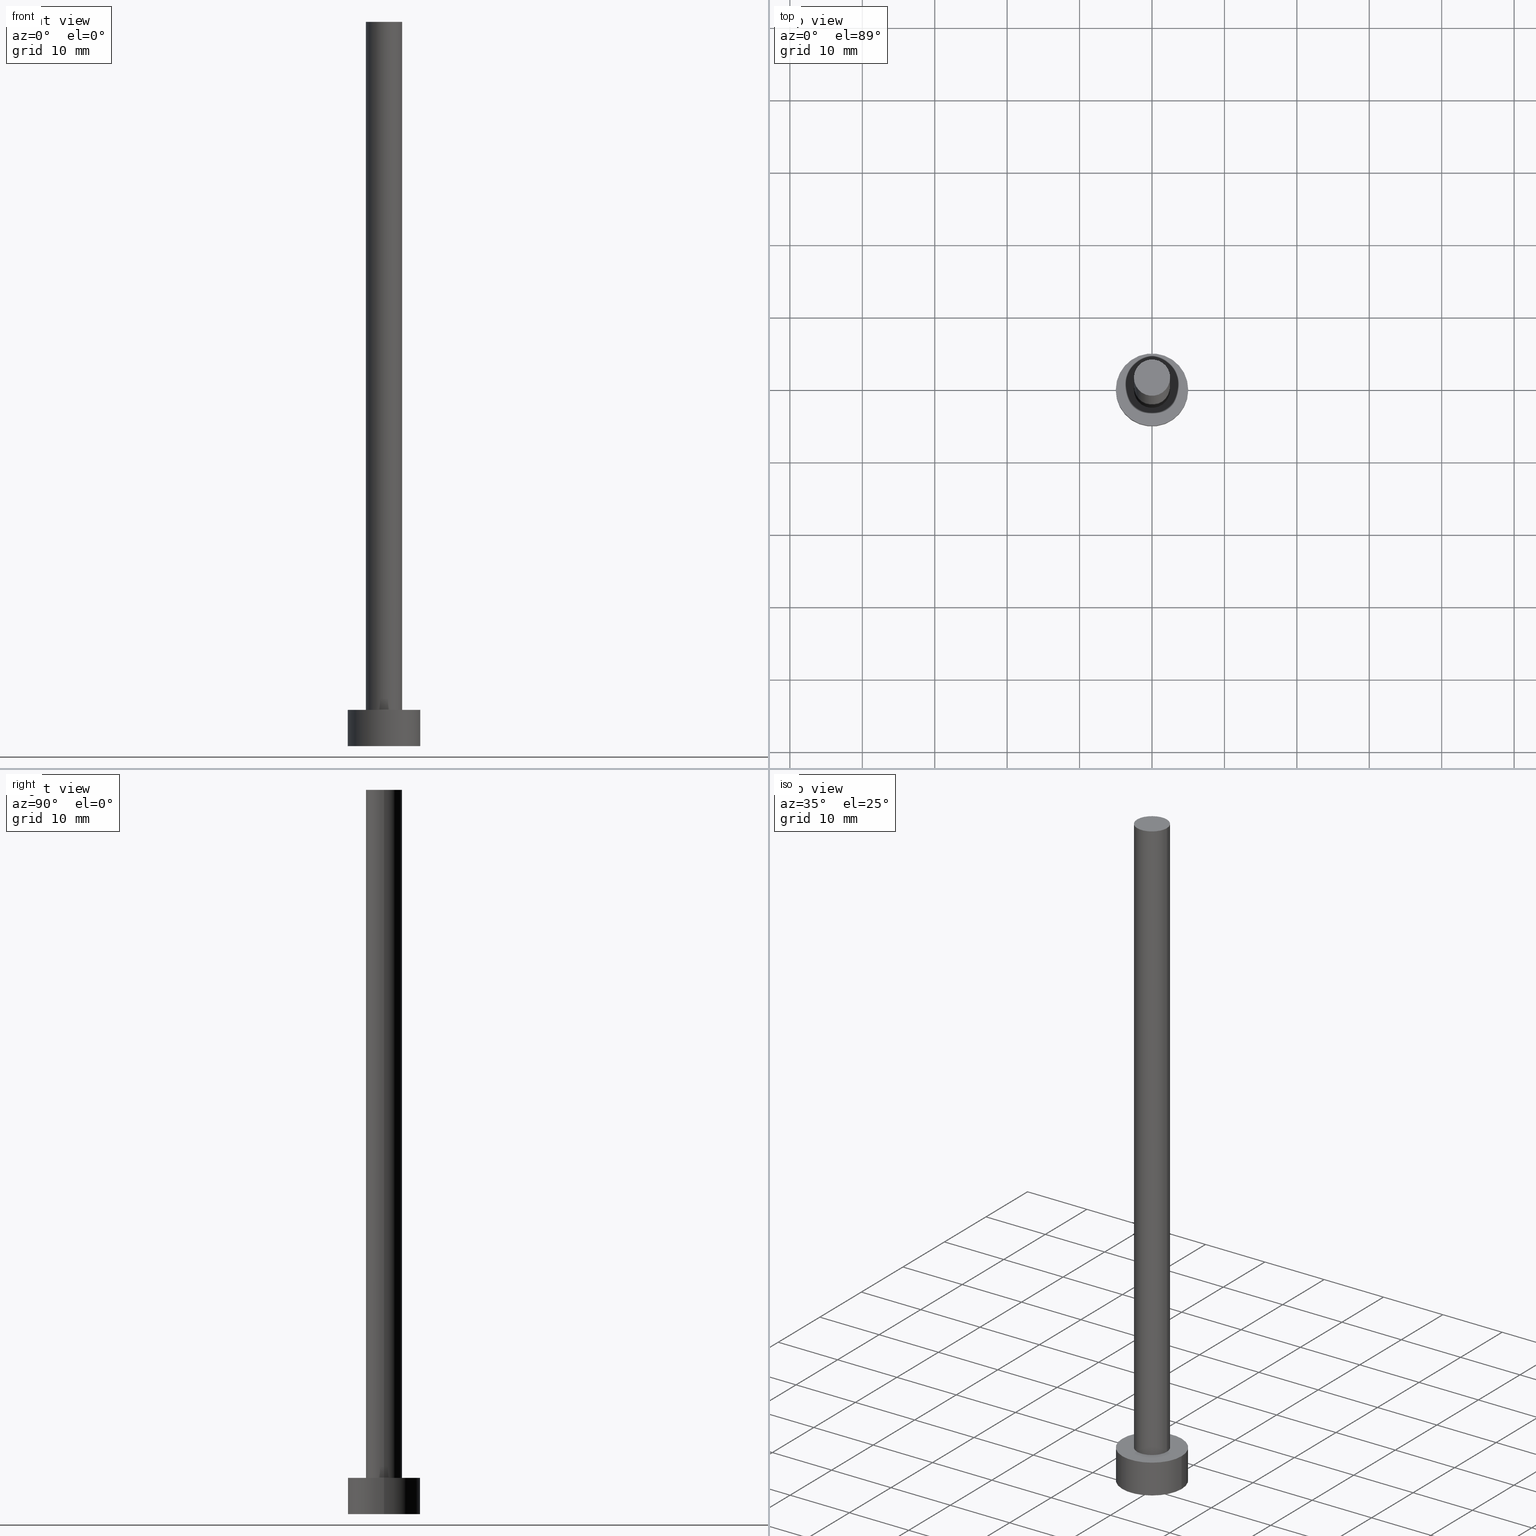
[diagram: canonical four-view strip — front | top / right | iso, engineering-drawing reading convention]
A machine part, canonical four-view strip (front | top / right | iso — engineering-drawing reading convention). The complete STEP part file that produces these views, byte-faithful:
ISO-10303-21;
HEADER;
FILE_DESCRIPTION (( 'STEP AP203' ),
    '1' );
FILE_NAME ('4335.STEP',
    '2023-02-13T16:18:46',
    ( '' ),
    ( '' ),
    'SwSTEP 2.0',
    'SolidWorks 2019',
    '' );
FILE_SCHEMA (( 'CONFIG_CONTROL_DESIGN' ));
ENDSEC;

DATA;
#1 = CC_DESIGN_PERSON_AND_ORGANIZATION_ASSIGNMENT ( #10, #126, ( #50 ) ) ;
#2 = CIRCLE ( 'NONE', #215, 5.000000000000000000 ) ;
#3 = APPROVAL_STATUS ( 'not_yet_approved' ) ;
#4 = CYLINDRICAL_SURFACE ( 'NONE', #29, 2.500000000000000000 ) ;
#5 = CYLINDRICAL_SURFACE ( 'NONE', #85, 5.000000000000000000 ) ;
#6 = CARTESIAN_POINT ( 'NONE',  ( 2.500000000000000000, 3.061616997868383141E-16, 100.0000000000000000 ) ) ;
#7 = AXIS2_PLACEMENT_3D ( 'NONE', #154, #175, #168 ) ;
#8 = APPROVAL_ROLE ( '' ) ;
#9 = SHAPE_DEFINITION_REPRESENTATION ( #149, #209 ) ;
#10 = PERSON_AND_ORGANIZATION ( #157, #158 ) ;
#11 = DIRECTION ( 'NONE',  ( 1.000000000000000000, 0.000000000000000000, 0.000000000000000000 ) ) ;
#12 = CARTESIAN_POINT ( 'NONE',  ( 0.000000000000000000, 0.000000000000000000, 0.000000000000000000 ) ) ;
#13 = CARTESIAN_POINT ( 'NONE',  ( 0.000000000000000000, 0.000000000000000000, 5.000000000000000000 ) ) ;
#14 = FACE_OUTER_BOUND ( 'NONE', #243, .T. ) ;
#15 = CIRCLE ( 'NONE', #182, 5.000000000000000000 ) ;
#16 = ORIENTED_EDGE ( 'NONE', *, *, #114, .F. ) ;
#17 = DIRECTION ( 'NONE',  ( 0.000000000000000000, 0.000000000000000000, 1.000000000000000000 ) ) ;
#18 = EDGE_CURVE ( 'NONE', #60, #133, #222, .T. ) ;
#19 = DIRECTION ( 'NONE',  ( 1.000000000000000000, 0.000000000000000000, 0.000000000000000000 ) ) ;
#20 = ORIENTED_EDGE ( 'NONE', *, *, #224, .T. ) ;
#21 = CARTESIAN_POINT ( 'NONE',  ( 0.000000000000000000, 0.000000000000000000, 0.000000000000000000 ) ) ;
#22 = EDGE_CURVE ( 'NONE', #133, #212, #195, .T. ) ;
#23 = MECHANICAL_CONTEXT ( 'NONE', #136, 'mechanical' ) ;
#24 = DATE_AND_TIME ( #204, #135 ) ;
#25 = PRODUCT_RELATED_PRODUCT_CATEGORY ( 'detail', '', ( #185 ) ) ;
#26 = CARTESIAN_POINT ( 'NONE',  ( 0.000000000000000000, 0.000000000000000000, 100.0000000000000000 ) ) ;
#27 = DIRECTION ( 'NONE',  ( 0.000000000000000000, 0.000000000000000000, 1.000000000000000000 ) ) ;
#28 = DESIGN_CONTEXT ( 'detailed design', #174, 'design' ) ;
#29 = AXIS2_PLACEMENT_3D ( 'NONE', #61, #36, #140 ) ;
#30 = DIRECTION ( 'NONE',  ( 0.000000000000000000, 0.000000000000000000, 1.000000000000000000 ) ) ;
#31 = CARTESIAN_POINT ( 'NONE',  ( 0.000000000000000000, 0.000000000000000000, 100.0000000000000000 ) ) ;
#32 = CYLINDRICAL_SURFACE ( 'NONE', #128, 2.500000000000000000 ) ;
#33 = CIRCLE ( 'NONE', #147, 2.500000000000000000 ) ;
#34 = CC_DESIGN_DATE_AND_TIME_ASSIGNMENT ( #42, #202, ( #207 ) ) ;
#35 = ORIENTED_EDGE ( 'NONE', *, *, #18, .F. ) ;
#36 = DIRECTION ( 'NONE',  ( -0.000000000000000000, -0.000000000000000000, -1.000000000000000000 ) ) ;
#37 = PERSON_AND_ORGANIZATION ( #157, #158 ) ;
#38 = APPROVAL_PERSON_ORGANIZATION ( #165, #101, #8 ) ;
#39 = CLOSED_SHELL ( 'NONE', ( #251, #229, #249, #167, #93, #201, #48 ) ) ;
#40 = EDGE_CURVE ( 'NONE', #59, #220, #64, .T. ) ;
#41 = ORIENTED_EDGE ( 'NONE', *, *, #176, .F. ) ;
#42 = DATE_AND_TIME ( #118, #171 ) ;
#43 = DATE_TIME_ROLE ( 'classification_date' ) ;
#44 = FACE_OUTER_BOUND ( 'NONE', #80, .T. ) ;
#45 = LOCAL_TIME ( 17, 18, 46.00000000000000000, #223 ) ;
#46 = DIRECTION ( 'NONE',  ( 1.000000000000000000, 0.000000000000000000, -0.000000000000000000 ) ) ;
#47 = CARTESIAN_POINT ( 'NONE',  ( 5.000000000000000000, 6.123233995736766282E-16, 5.000000000000000000 ) ) ;
#48 = ADVANCED_FACE ( 'NONE', ( #44 ), #75, .T. ) ;
#49 = APPROVAL_DATE_TIME ( #186, #101 ) ;
#50 = PRODUCT_DEFINITION_FORMATION_WITH_SPECIFIED_SOURCE ( 'LIBOVOLN�', '', #185, .NOT_KNOWN. ) ;
#51 = DIRECTION ( 'NONE',  ( 0.000000000000000000, 0.000000000000000000, 1.000000000000000000 ) ) ;
#52 = LOCAL_TIME ( 17, 18, 46.00000000000000000, #205 ) ;
#53 = CARTESIAN_POINT ( 'NONE',  ( -5.000000000000000000, 0.000000000000000000, 0.000000000000000000 ) ) ;
#54 = EDGE_LOOP ( 'NONE', ( #170, #96 ) ) ;
#55 = DIRECTION ( 'NONE',  ( 1.000000000000000000, 0.000000000000000000, 0.000000000000000000 ) ) ;
#56 = ORIENTED_EDGE ( 'NONE', *, *, #40, .F. ) ;
#57 = ORIENTED_EDGE ( 'NONE', *, *, #120, .F. ) ;
#58 =( NAMED_UNIT ( * ) PLANE_ANGLE_UNIT ( ) SI_UNIT ( $, .RADIAN. ) );
#59 = VERTEX_POINT ( 'NONE', #191 ) ;
#60 = VERTEX_POINT ( 'NONE', #252 ) ;
#61 = CARTESIAN_POINT ( 'NONE',  ( 0.000000000000000000, 0.000000000000000000, 100.0000000000000000 ) ) ;
#62 = ORIENTED_EDGE ( 'NONE', *, *, #22, .T. ) ;
#63 = PERSON_AND_ORGANIZATION ( #157, #158 ) ;
#64 = LINE ( 'NONE', #66, #83 ) ;
#65 = SECURITY_CLASSIFICATION_LEVEL ( 'unclassified' ) ;
#66 = CARTESIAN_POINT ( 'NONE',  ( -5.000000000000000000, 0.000000000000000000, 5.000000000000000000 ) ) ;
#67 = CARTESIAN_POINT ( 'NONE',  ( 0.000000000000000000, 0.000000000000000000, 100.0000000000000000 ) ) ;
#68 = CIRCLE ( 'NONE', #226, 5.000000000000000000 ) ;
#69 =( GEOMETRIC_REPRESENTATION_CONTEXT ( 3 ) GLOBAL_UNCERTAINTY_ASSIGNED_CONTEXT ( ( #233 ) ) GLOBAL_UNIT_ASSIGNED_CONTEXT ( ( #156, #58, #239 ) ) REPRESENTATION_CONTEXT ( 'NONE', 'WORKASPACE' ) );
#70 = EDGE_CURVE ( 'NONE', #220, #159, #184, .T. ) ;
#71 = CARTESIAN_POINT ( 'NONE',  ( -2.500000000000000000, 0.000000000000000000, 100.0000000000000000 ) ) ;
#72 = CARTESIAN_POINT ( 'NONE',  ( 0.000000000000000000, 0.000000000000000000, 5.000000000000000000 ) ) ;
#73 = VECTOR ( 'NONE', #211, 1000.000000000000000 ) ;
#74 = ORIENTED_EDGE ( 'NONE', *, *, #187, .F. ) ;
#75 = PLANE ( 'NONE',  #142 ) ;
#76 = ORIENTED_EDGE ( 'NONE', *, *, #153, .T. ) ;
#77 = DIRECTION ( 'NONE',  ( -1.000000000000000000, 0.000000000000000000, 0.000000000000000000 ) ) ;
#78 = CC_DESIGN_SECURITY_CLASSIFICATION ( #232, ( #50 ) ) ;
#79 = ORIENTED_EDGE ( 'NONE', *, *, #18, .T. ) ;
#80 = EDGE_LOOP ( 'NONE', ( #200, #216 ) ) ;
#81 = APPROVAL_STATUS ( 'not_yet_approved' ) ;
#82 = COORDINATED_UNIVERSAL_TIME_OFFSET ( 1, 0, .AHEAD. ) ;
#83 = VECTOR ( 'NONE', #146, 1000.000000000000000 ) ;
#84 = DIRECTION ( 'NONE',  ( -0.000000000000000000, -0.000000000000000000, -1.000000000000000000 ) ) ;
#85 = AXIS2_PLACEMENT_3D ( 'NONE', #162, #121, #77 ) ;
#86 = PERSON_AND_ORGANIZATION_ROLE ( 'classification_officer' ) ;
#87 = DIRECTION ( 'NONE',  ( 1.000000000000000000, 0.000000000000000000, 0.000000000000000000 ) ) ;
#88 = CC_DESIGN_PERSON_AND_ORGANIZATION_ASSIGNMENT ( #109, #104, ( #50 ) ) ;
#89 = AXIS2_PLACEMENT_3D ( 'NONE', #67, #30, #11 ) ;
#90 = DIRECTION ( 'NONE',  ( -1.000000000000000000, 0.000000000000000000, 0.000000000000000000 ) ) ;
#91 = ORIENTED_EDGE ( 'NONE', *, *, #224, .F. ) ;
#92 = CARTESIAN_POINT ( 'NONE',  ( -2.500000000000000000, 0.000000000000000000, 100.0000000000000000 ) ) ;
#93 = ADVANCED_FACE ( 'NONE', ( #108 ), #125, .F. ) ;
#94 = ORIENTED_EDGE ( 'NONE', *, *, #40, .T. ) ;
#95 = CALENDAR_DATE ( 2023, 13, 2 ) ;
#96 = ORIENTED_EDGE ( 'NONE', *, *, #236, .F. ) ;
#97 = APPLICATION_PROTOCOL_DEFINITION ( 'international standard', 'config_control_design', 1994, #174 ) ;
#98 = COORDINATED_UNIVERSAL_TIME_OFFSET ( 1, 0, .AHEAD. ) ;
#99 = CC_DESIGN_PERSON_AND_ORGANIZATION_ASSIGNMENT ( #37, #203, ( #207 ) ) ;
#100 = CIRCLE ( 'NONE', #189, 2.500000000000000000 ) ;
#101 = APPROVAL ( #208, 'NEUR�EN�' ) ;
#102 = MANIFOLD_SOLID_BREP ( 'P�idat vysunut�m3', #39 ) ;
#103 = EDGE_CURVE ( 'NONE', #194, #212, #188, .T. ) ;
#104 = PERSON_AND_ORGANIZATION_ROLE ( 'creator' ) ;
#105 = DIRECTION ( 'NONE',  ( 0.000000000000000000, 0.000000000000000000, 1.000000000000000000 ) ) ;
#106 = VECTOR ( 'NONE', #84, 1000.000000000000000 ) ;
#107 = CALENDAR_DATE ( 2023, 13, 2 ) ;
#108 = FACE_OUTER_BOUND ( 'NONE', #54, .T. ) ;
#109 = PERSON_AND_ORGANIZATION ( #157, #158 ) ;
#110 = LINE ( 'NONE', #111, #245 ) ;
#111 = CARTESIAN_POINT ( 'NONE',  ( 5.000000000000000000, 6.123233995736766282E-16, 5.000000000000000000 ) ) ;
#112 = CC_DESIGN_PERSON_AND_ORGANIZATION_ASSIGNMENT ( #122, #86, ( #232 ) ) ;
#113 = DIRECTION ( 'NONE',  ( -0.000000000000000000, -0.000000000000000000, -1.000000000000000000 ) ) ;
#114 = EDGE_CURVE ( 'NONE', #60, #194, #33, .T. ) ;
#115 = EDGE_LOOP ( 'NONE', ( #137, #20, #218, #56 ) ) ;
#116 = APPROVAL_ROLE ( '' ) ;
#117 = EDGE_LOOP ( 'NONE', ( #41, #237 ) ) ;
#118 = CALENDAR_DATE ( 2023, 13, 2 ) ;
#119 = CC_DESIGN_APPROVAL ( #248, ( #207 ) ) ;
#120 = EDGE_CURVE ( 'NONE', #194, #60, #181, .T. ) ;
#121 = DIRECTION ( 'NONE',  ( -0.000000000000000000, -0.000000000000000000, -1.000000000000000000 ) ) ;
#122 = PERSON_AND_ORGANIZATION ( #157, #158 ) ;
#123 = LOCAL_TIME ( 17, 18, 46.00000000000000000, #124 ) ;
#124 = COORDINATED_UNIVERSAL_TIME_OFFSET ( 1, 0, .AHEAD. ) ;
#125 = PLANE ( 'NONE',  #151 ) ;
#126 = PERSON_AND_ORGANIZATION_ROLE ( 'design_supplier' ) ;
#127 = CARTESIAN_POINT ( 'NONE',  ( 2.500000000000000000, 3.061616997868383141E-16, 5.000000000000000000 ) ) ;
#128 = AXIS2_PLACEMENT_3D ( 'NONE', #238, #152, #90 ) ;
#129 = PLANE ( 'NONE',  #214 ) ;
#130 = FACE_OUTER_BOUND ( 'NONE', #115, .T. ) ;
#131 = ORIENTED_EDGE ( 'NONE', *, *, #103, .F. ) ;
#132 = DIRECTION ( 'NONE',  ( 1.000000000000000000, 0.000000000000000000, -0.000000000000000000 ) ) ;
#133 = VERTEX_POINT ( 'NONE', #127 ) ;
#134 = APPROVAL ( #3, 'NEUR�EN�' ) ;
#135 = LOCAL_TIME ( 17, 18, 46.00000000000000000, #82 ) ;
#136 = APPLICATION_CONTEXT ( 'configuration controlled 3d designs of mechanical parts and assemblies' ) ;
#137 = ORIENTED_EDGE ( 'NONE', *, *, #153, .F. ) ;
#138 = EDGE_LOOP ( 'NONE', ( #16, #79, #62, #131 ) ) ;
#139 = DATE_AND_TIME ( #95, #45 ) ;
#140 = DIRECTION ( 'NONE',  ( -1.000000000000000000, 0.000000000000000000, 0.000000000000000000 ) ) ;
#141 = AXIS2_PLACEMENT_3D ( 'NONE', #213, #113, #230 ) ;
#142 = AXIS2_PLACEMENT_3D ( 'NONE', #31, #51, #46 ) ;
#143 = ORIENTED_EDGE ( 'NONE', *, *, #176, .T. ) ;
#144 = ORIENTED_EDGE ( 'NONE', *, *, #70, .T. ) ;
#145 = DATE_AND_TIME ( #225, #123 ) ;
#146 = DIRECTION ( 'NONE',  ( -0.000000000000000000, -0.000000000000000000, -1.000000000000000000 ) ) ;
#147 = AXIS2_PLACEMENT_3D ( 'NONE', #26, #231, #172 ) ;
#148 = FACE_OUTER_BOUND ( 'NONE', #173, .T. ) ;
#149 = PRODUCT_DEFINITION_SHAPE ( 'NONE', 'NONE',  #207 ) ;
#150 = DIRECTION ( 'NONE',  ( 1.000000000000000000, 0.000000000000000000, 0.000000000000000000 ) ) ;
#151 = AXIS2_PLACEMENT_3D ( 'NONE', #12, #253, #132 ) ;
#152 = DIRECTION ( 'NONE',  ( -0.000000000000000000, -0.000000000000000000, -1.000000000000000000 ) ) ;
#153 = EDGE_CURVE ( 'NONE', #164, #59, #68, .T. ) ;
#154 = CARTESIAN_POINT ( 'NONE',  ( 0.000000000000000000, 0.000000000000000000, 0.000000000000000000 ) ) ;
#155 = CARTESIAN_POINT ( 'NONE',  ( 0.000000000000000000, 0.000000000000000000, 5.000000000000000000 ) ) ;
#156 =( LENGTH_UNIT ( ) NAMED_UNIT ( * ) SI_UNIT ( .MILLI., .METRE. ) );
#157 = PERSON ( 'NEUR�EN�', 'NEUR�EN�', 'NEUR�EN�', ('NEUR�EN�'), ('NEUR�EN�'), ('NEUR�EN�') ) ;
#158 = ORGANIZATION ( 'NEUR�EN�', 'NEUR�EN�', '' ) ;
#159 = VERTEX_POINT ( 'NONE', #166 ) ;
#160 = APPROVAL_ROLE ( '' ) ;
#161 = FACE_OUTER_BOUND ( 'NONE', #199, .T. ) ;
#162 = CARTESIAN_POINT ( 'NONE',  ( 0.000000000000000000, 0.000000000000000000, 5.000000000000000000 ) ) ;
#163 = DIRECTION ( 'NONE',  ( 0.000000000000000000, 0.000000000000000000, 1.000000000000000000 ) ) ;
#164 = VERTEX_POINT ( 'NONE', #47 ) ;
#165 = PERSON_AND_ORGANIZATION ( #157, #158 ) ;
#166 = CARTESIAN_POINT ( 'NONE',  ( 5.000000000000000000, 6.123233995736766282E-16, 0.000000000000000000 ) ) ;
#167 = ADVANCED_FACE ( 'NONE', ( #254, #14 ), #129, .T. ) ;
#168 = DIRECTION ( 'NONE',  ( 1.000000000000000000, 0.000000000000000000, 0.000000000000000000 ) ) ;
#169 = DIRECTION ( 'NONE',  ( -0.000000000000000000, -0.000000000000000000, -1.000000000000000000 ) ) ;
#170 = ORIENTED_EDGE ( 'NONE', *, *, #70, .F. ) ;
#171 = LOCAL_TIME ( 17, 18, 46.00000000000000000, #98 ) ;
#172 = DIRECTION ( 'NONE',  ( 1.000000000000000000, 0.000000000000000000, 0.000000000000000000 ) ) ;
#173 = EDGE_LOOP ( 'NONE', ( #35, #57, #240, #143 ) ) ;
#174 = APPLICATION_CONTEXT ( 'configuration controlled 3d designs of mechanical parts and assemblies' ) ;
#175 = DIRECTION ( 'NONE',  ( 0.000000000000000000, 0.000000000000000000, 1.000000000000000000 ) ) ;
#176 = EDGE_CURVE ( 'NONE', #212, #133, #100, .T. ) ;
#177 = APPROVAL_DATE_TIME ( #139, #248 ) ;
#178 = APPROVAL_PERSON_ORGANIZATION ( #217, #248, #116 ) ;
#179 = CC_DESIGN_PERSON_AND_ORGANIZATION_ASSIGNMENT ( #63, #242, ( #185 ) ) ;
#180 = PERSON_AND_ORGANIZATION ( #157, #158 ) ;
#181 = CIRCLE ( 'NONE', #89, 2.500000000000000000 ) ;
#182 = AXIS2_PLACEMENT_3D ( 'NONE', #197, #17, #219 ) ;
#183 = CARTESIAN_POINT ( 'NONE',  ( 0.000000000000000000, 0.000000000000000000, 5.000000000000000000 ) ) ;
#184 = CIRCLE ( 'NONE', #7, 5.000000000000000000 ) ;
#185 = PRODUCT ( '4335', '4335', '', ( #23 ) ) ;
#186 = DATE_AND_TIME ( #107, #52 ) ;
#187 = EDGE_CURVE ( 'NONE', #59, #164, #2, .T. ) ;
#188 = LINE ( 'NONE', #92, #73 ) ;
#189 = AXIS2_PLACEMENT_3D ( 'NONE', #255, #235, #150 ) ;
#190 = APPROVAL_PERSON_ORGANIZATION ( #180, #134, #160 ) ;
#191 = CARTESIAN_POINT ( 'NONE',  ( -5.000000000000000000, 0.000000000000000000, 5.000000000000000000 ) ) ;
#192 = ORIENTED_EDGE ( 'NONE', *, *, #187, .T. ) ;
#193 = CYLINDRICAL_SURFACE ( 'NONE', #141, 5.000000000000000000 ) ;
#194 = VERTEX_POINT ( 'NONE', #71 ) ;
#195 = CIRCLE ( 'NONE', #206, 2.500000000000000000 ) ;
#196 = CC_DESIGN_APPROVAL ( #101, ( #232 ) ) ;
#197 = CARTESIAN_POINT ( 'NONE',  ( 0.000000000000000000, 0.000000000000000000, 0.000000000000000000 ) ) ;
#198 = DIRECTION ( 'NONE',  ( 0.000000000000000000, 0.000000000000000000, 1.000000000000000000 ) ) ;
#199 = EDGE_LOOP ( 'NONE', ( #91, #74, #94, #144 ) ) ;
#200 = ORIENTED_EDGE ( 'NONE', *, *, #120, .T. ) ;
#201 = ADVANCED_FACE ( 'NONE', ( #148 ), #32, .T. ) ;
#202 = DATE_TIME_ROLE ( 'creation_date' ) ;
#203 = PERSON_AND_ORGANIZATION_ROLE ( 'creator' ) ;
#204 = CALENDAR_DATE ( 2023, 13, 2 ) ;
#205 = COORDINATED_UNIVERSAL_TIME_OFFSET ( 1, 0, .AHEAD. ) ;
#206 = AXIS2_PLACEMENT_3D ( 'NONE', #183, #163, #247 ) ;
#207 = PRODUCT_DEFINITION ( 'NEZN�M�', '', #50, #28 ) ;
#208 = APPROVAL_STATUS ( 'not_yet_approved' ) ;
#209 = ADVANCED_BREP_SHAPE_REPRESENTATION ( '4335', ( #102, #241 ), #69 ) ;
#210 = DIRECTION ( 'NONE',  ( 0.000000000000000000, 0.000000000000000000, 1.000000000000000000 ) ) ;
#211 = DIRECTION ( 'NONE',  ( -0.000000000000000000, -0.000000000000000000, -1.000000000000000000 ) ) ;
#212 = VERTEX_POINT ( 'NONE', #234 ) ;
#213 = CARTESIAN_POINT ( 'NONE',  ( 0.000000000000000000, 0.000000000000000000, 5.000000000000000000 ) ) ;
#214 = AXIS2_PLACEMENT_3D ( 'NONE', #72, #210, #250 ) ;
#215 = AXIS2_PLACEMENT_3D ( 'NONE', #13, #27, #87 ) ;
#216 = ORIENTED_EDGE ( 'NONE', *, *, #114, .T. ) ;
#217 = PERSON_AND_ORGANIZATION ( #157, #158 ) ;
#218 = ORIENTED_EDGE ( 'NONE', *, *, #236, .T. ) ;
#219 = DIRECTION ( 'NONE',  ( 1.000000000000000000, 0.000000000000000000, 0.000000000000000000 ) ) ;
#220 = VERTEX_POINT ( 'NONE', #53 ) ;
#221 = CC_DESIGN_APPROVAL ( #134, ( #50 ) ) ;
#222 = LINE ( 'NONE', #6, #106 ) ;
#223 = COORDINATED_UNIVERSAL_TIME_OFFSET ( 1, 0, .AHEAD. ) ;
#224 = EDGE_CURVE ( 'NONE', #164, #159, #110, .T. ) ;
#225 = CALENDAR_DATE ( 2023, 13, 2 ) ;
#226 = AXIS2_PLACEMENT_3D ( 'NONE', #155, #105, #55 ) ;
#227 = CC_DESIGN_DATE_AND_TIME_ASSIGNMENT ( #145, #43, ( #232 ) ) ;
#228 = APPROVAL_DATE_TIME ( #24, #134 ) ;
#229 = ADVANCED_FACE ( 'NONE', ( #130 ), #193, .T. ) ;
#230 = DIRECTION ( 'NONE',  ( -1.000000000000000000, 0.000000000000000000, 0.000000000000000000 ) ) ;
#231 = DIRECTION ( 'NONE',  ( 0.000000000000000000, 0.000000000000000000, 1.000000000000000000 ) ) ;
#232 = SECURITY_CLASSIFICATION ( '', '', #65 ) ;
#233 = UNCERTAINTY_MEASURE_WITH_UNIT (LENGTH_MEASURE( 1.000000000000000082E-05 ), #156, 'distance_accuracy_value', 'NONE');
#234 = CARTESIAN_POINT ( 'NONE',  ( -2.500000000000000000, 0.000000000000000000, 5.000000000000000000 ) ) ;
#235 = DIRECTION ( 'NONE',  ( 0.000000000000000000, 0.000000000000000000, 1.000000000000000000 ) ) ;
#236 = EDGE_CURVE ( 'NONE', #159, #220, #15, .T. ) ;
#237 = ORIENTED_EDGE ( 'NONE', *, *, #22, .F. ) ;
#238 = CARTESIAN_POINT ( 'NONE',  ( 0.000000000000000000, 0.000000000000000000, 100.0000000000000000 ) ) ;
#239 =( NAMED_UNIT ( * ) SI_UNIT ( $, .STERADIAN. ) SOLID_ANGLE_UNIT ( ) );
#240 = ORIENTED_EDGE ( 'NONE', *, *, #103, .T. ) ;
#241 = AXIS2_PLACEMENT_3D ( 'NONE', #21, #198, #19 ) ;
#242 = PERSON_AND_ORGANIZATION_ROLE ( 'design_owner' ) ;
#243 = EDGE_LOOP ( 'NONE', ( #192, #76 ) ) ;
#244 = APPLICATION_PROTOCOL_DEFINITION ( 'international standard', 'config_control_design', 1994, #136 ) ;
#245 = VECTOR ( 'NONE', #169, 1000.000000000000000 ) ;
#246 = FACE_OUTER_BOUND ( 'NONE', #138, .T. ) ;
#247 = DIRECTION ( 'NONE',  ( 1.000000000000000000, 0.000000000000000000, 0.000000000000000000 ) ) ;
#248 = APPROVAL ( #81, 'NEUR�EN�' ) ;
#249 = ADVANCED_FACE ( 'NONE', ( #161 ), #5, .T. ) ;
#250 = DIRECTION ( 'NONE',  ( 1.000000000000000000, 0.000000000000000000, -0.000000000000000000 ) ) ;
#251 = ADVANCED_FACE ( 'NONE', ( #246 ), #4, .T. ) ;
#252 = CARTESIAN_POINT ( 'NONE',  ( 2.500000000000000000, 3.061616997868383141E-16, 100.0000000000000000 ) ) ;
#253 = DIRECTION ( 'NONE',  ( 0.000000000000000000, 0.000000000000000000, 1.000000000000000000 ) ) ;
#254 = FACE_BOUND ( 'NONE', #117, .T. ) ;
#255 = CARTESIAN_POINT ( 'NONE',  ( 0.000000000000000000, 0.000000000000000000, 5.000000000000000000 ) ) ;
ENDSEC;
END-ISO-10303-21;
